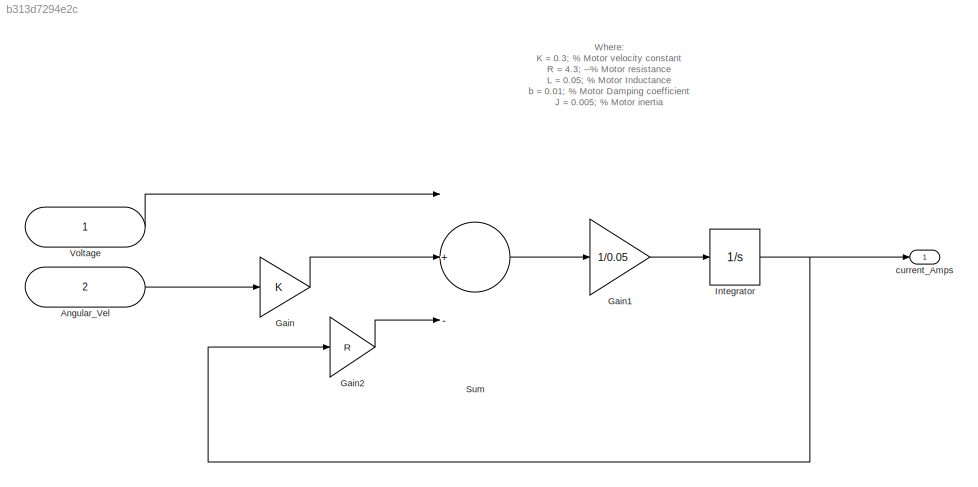
MODEL slx_b313d7294e2c
KIND model
CONFIG AbsTol = auto
CONFIG FixedStep = auto
CONFIG MaxStep = auto
CONFIG MinStep = auto
CONFIG RelTol = 1e-3
CONFIG SampleTimeConstraint = Unconstrained
CONFIG Solver = ode45
CONFIG SolverMode = SingleTasking
CONFIG SolverName = ode45
CONFIG StartTime = 0.0
CONFIG StopTime = 10.0
BLOCK [Inport] Angular_Vel
  IconDisplay = Port number
  Port = 2
BLOCK [Gain] Gain
  Gain = K
  OutDataTypeStr = Inherit: Inherit via internal rule
  ParamDataTypeStr = Inherit: Inherit via internal rule
  SaturateOnIntegerOverflow = off
BLOCK [Gain] Gain1
  Gain = 1/0.05
  OutDataTypeStr = Inherit: Inherit via internal rule
  ParamDataTypeStr = Inherit: Inherit via internal rule
  SaturateOnIntegerOverflow = off
BLOCK [Gain] Gain2
  Gain = R
  OutDataTypeStr = Inherit: Inherit via internal rule
  ParamDataTypeStr = Inherit: Inherit via internal rule
  SaturateOnIntegerOverflow = off
BLOCK [Integrator] Integrator
  Ports = [1, 1]
BLOCK [Sum] Sum
  InputSameDT = off
  Inputs = |+--
  OutDataTypeStr = Inherit: Inherit via internal rule
  Ports = [3, 1]
  SaturateOnIntegerOverflow = off
BLOCK [Inport] Voltage
  IconDisplay = Port number
BLOCK [Outport] current_Amps
  IconDisplay = Port number
ANNOTATION (root): Where: K = 0.3; % Motor velocity constant R = 4.3; --% Motor resistance L = 0.05; % Motor Inductance b = 0.01; % Motor Damping coefficient J = 0.005; % Motor inertia
LINE Angular_Vel:1 -> Gain:1
LINE Gain1:1 -> Integrator:1
LINE Gain2:1 -> Sum:3
LINE Gain:1 -> Sum:2
NET Integrator:1 -> Gain2:1, current_Amps:1
LINE Sum:1 -> Gain1:1
LINE Voltage:1 -> Sum:1
note: NET lines group one-source signal fan-out (src -> all destinations, sorted); 1:1 wires keep LINE
